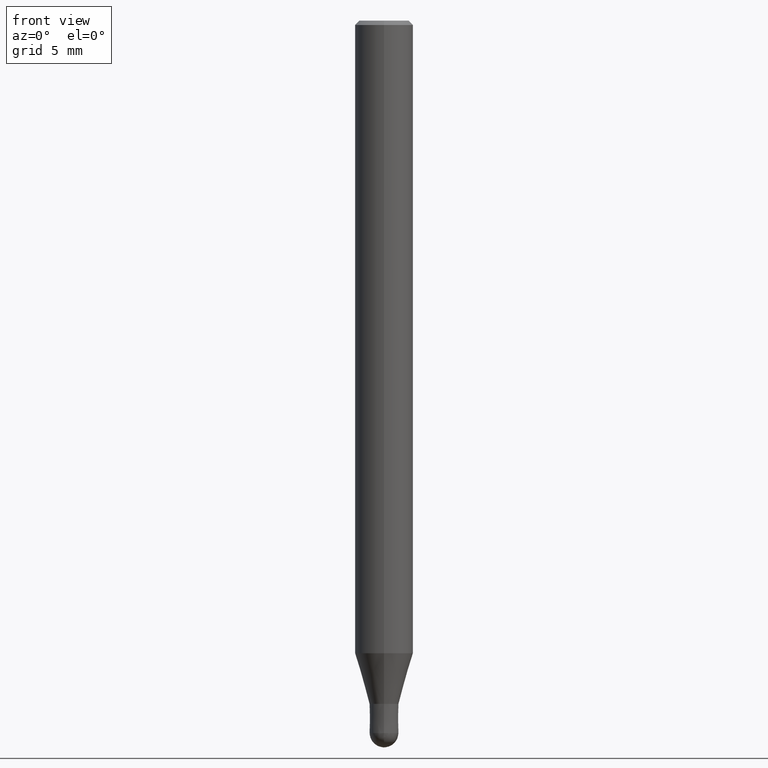
[diagram: clean part render]
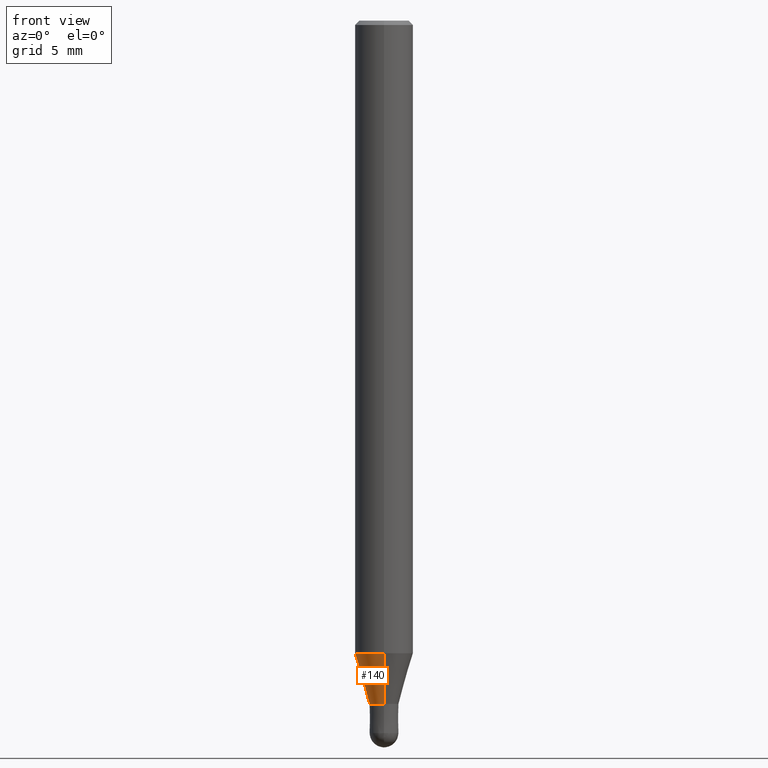
[diagram: same view with one face highlighted and labeled with its STEP entity id]
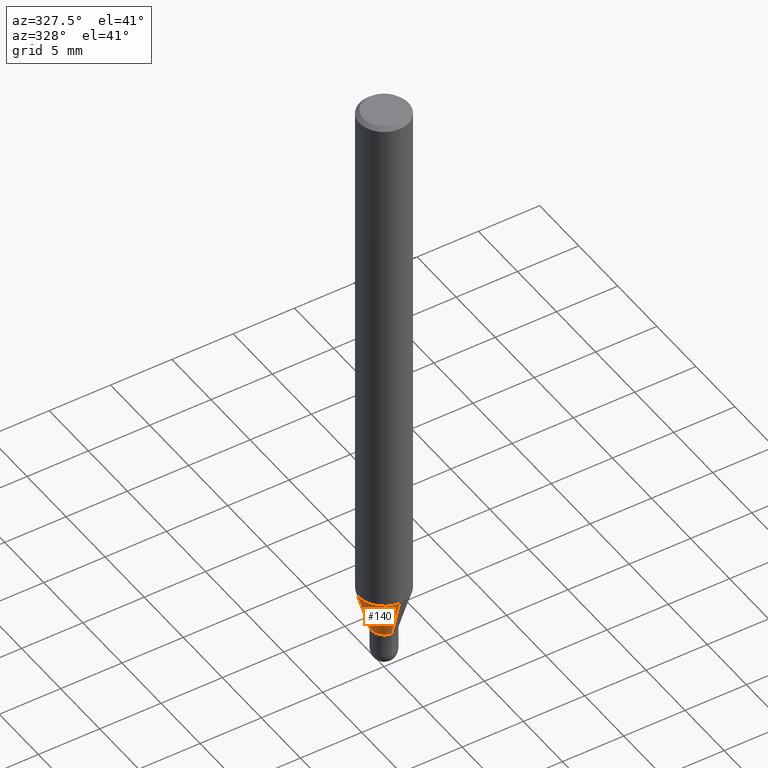
[diagram: same view with one face highlighted and labeled with its STEP entity id]
A machine part, front view. The second image highlights one B-rep face of the part: STEP entity #140.
A second angle (auxiliary view) of the same face is appended — the face is thin or edge-on in the first view.
In plain terms, the highlighted conical surface has half-angle 16.002 deg.
Its self-contained STEP definition (entity closure, byte-faithful):
#86=VERTEX_POINT('',#211);
#96=EDGE_CURVE('',#190,#150,#223,.T.);
#98=EDGE_CURVE('',#86,#190,#225,.T.);
#118=EDGE_CURVE('',#86,#158,#246,.T.);
#140=ADVANCED_FACE('',(#272),#273,.T.);
#150=VERTEX_POINT('',#284);
#158=VERTEX_POINT('',#293);
#162=EDGE_CURVE('',#150,#158,#297,.T.);
#190=VERTEX_POINT('',#330);
#211=CARTESIAN_POINT('',(1.22454512350469E-016,-0.99995,-47.0));
#223=CIRCLE('',#358,1.99995);
#225=LINE('',#361,#362);
#246=CIRCLE('',#389,0.99995);
#272=FACE_OUTER_BOUND('',#421,.T.);
#273=CONICAL_SURFACE('',#422,1.49995,0.279284171542493);
#284=CARTESIAN_POINT('',(0.0,1.99995,-43.513));
#293=CARTESIAN_POINT('',(0.0,0.99995,-47.0));
#297=LINE('',#453,#454);
#330=CARTESIAN_POINT('',(2.44915147732706E-016,-1.99995,-43.513));
#358=AXIS2_PLACEMENT_3D('',#502,#503,#504);
#361=CARTESIAN_POINT('',(1.83684830041587E-016,-1.49995,-45.2565));
#362=VECTOR('',#505,1.0);
#389=AXIS2_PLACEMENT_3D('',#526,#527,#528);
#421=EDGE_LOOP('',(#570,#571,#572,#573));
#422=AXIS2_PLACEMENT_3D('',#574,#575,#576);
#453=CARTESIAN_POINT('',(-1.83684830041587E-016,1.49995,-45.2565));
#454=VECTOR('',#602,1.0);
#502=CARTESIAN_POINT('',(0.0,0.0,-43.513));
#503=DIRECTION('',(0.0,0.0,-1.0));
#504=DIRECTION('',(0.0,1.0,0.0));
#505=DIRECTION('',(3.3758432755158E-017,-0.275667626987133,0.961253015304131));
#526=CARTESIAN_POINT('',(0.0,0.0,-47.0));
#527=DIRECTION('',(0.0,0.0,-1.0));
#528=DIRECTION('',(0.0,1.0,0.0));
#570=ORIENTED_EDGE('',*,*,#162,.T.);
#571=ORIENTED_EDGE('',*,*,#118,.F.);
#572=ORIENTED_EDGE('',*,*,#98,.T.);
#573=ORIENTED_EDGE('',*,*,#96,.T.);
#574=CARTESIAN_POINT('',(0.0,0.0,-45.2565));
#575=DIRECTION('',(-0.0,-0.0,1.0));
#576=DIRECTION('',(0.0,1.0,0.0));
#602=DIRECTION('',(3.3758432755158E-017,-0.275667626987133,-0.961253015304131));